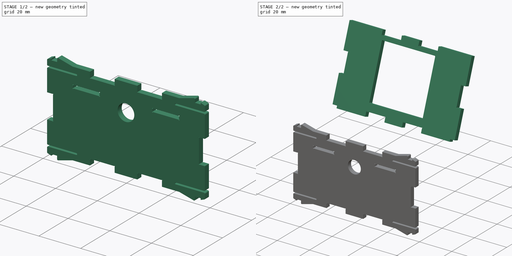
[diagram: build sequence overview — one tinted view per stage of 2, left to right]
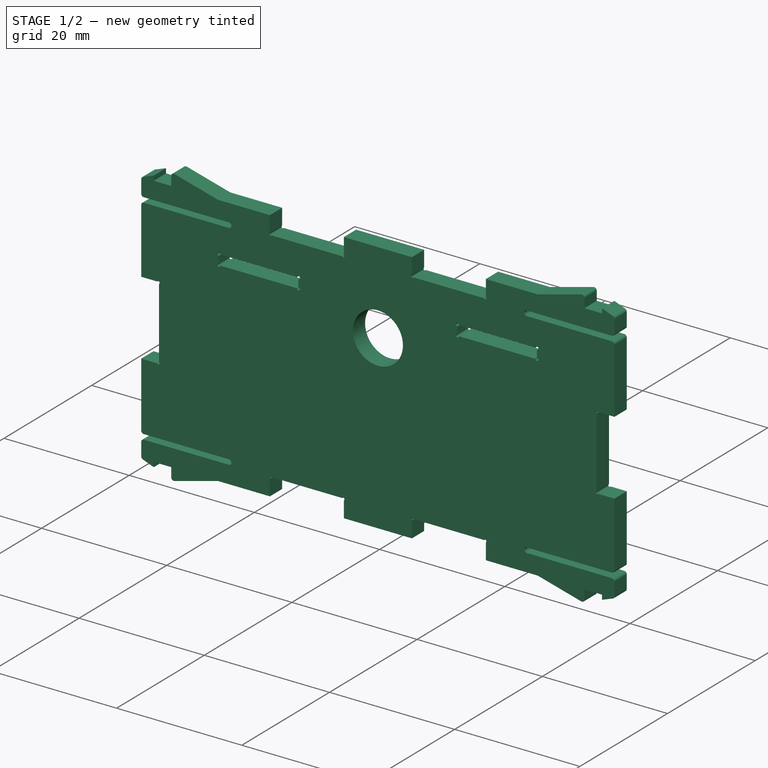
[diagram: stage 1 of 2 — iso view after this stage's code; geometry added in this stage tinted green]
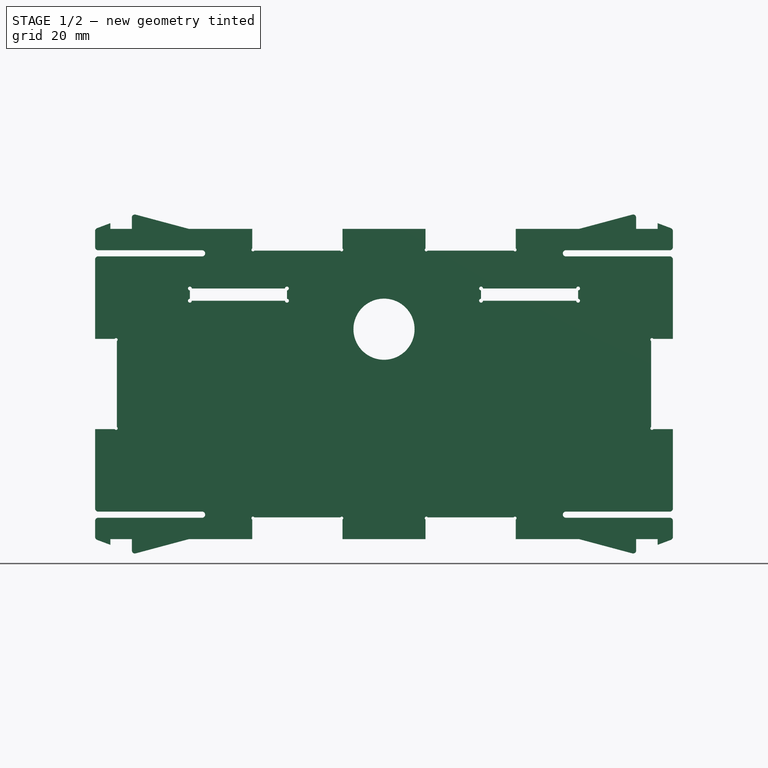
[diagram: stage 1 of 2 — front view after this stage's code; geometry added in this stage tinted green]
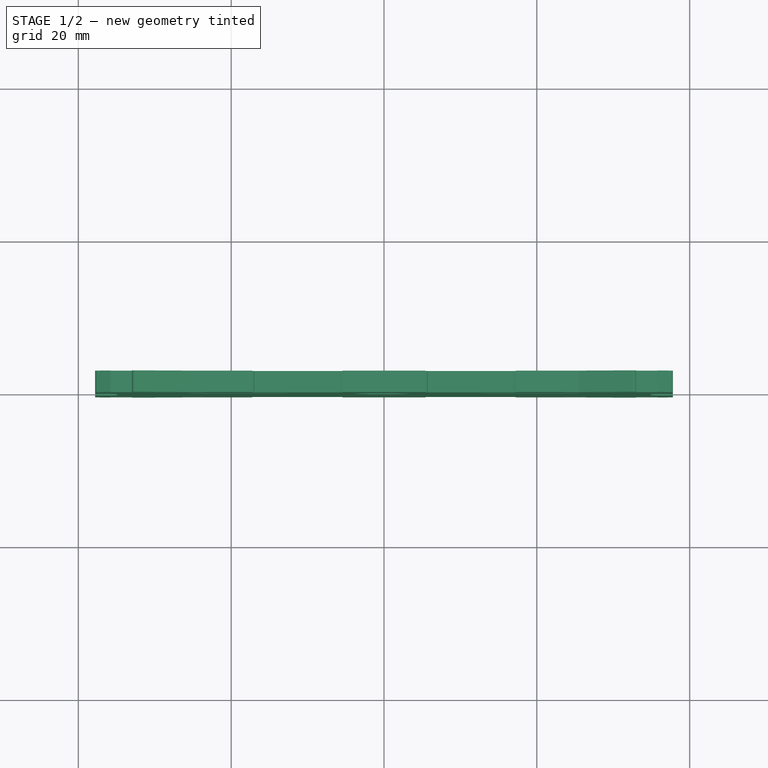
[diagram: stage 1 of 2 — top view after this stage's code; geometry added in this stage tinted green]
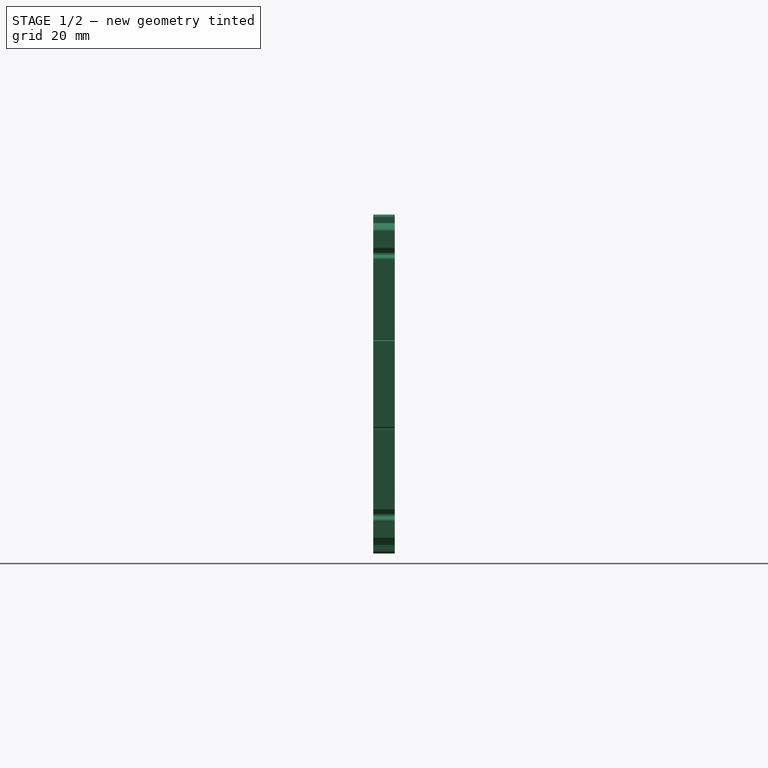
[diagram: stage 1 of 2 — right view after this stage's code; geometry added in this stage tinted green]
FCSTD DOCUMENT  (FreeCAD 1.0R39109 (Git))
Label: TheThing_v3_multijoin
License: CERN Open Hardware Licence strongly-reciprocal
LicenseURL: https://cern-ohl.web.cern.ch/
objects: Part::Feature×10, Sketcher::SketchObject×2, PartDesign::FeatureBase×1, PartDesign::Pocket×1, PartDesign::Body×1, Part::Extrusion×1, Part::Cut×1
note: 22 computed .brp shape members not serialized (recipe doc carries the construction recipe); baked Part::Feature solids carry a one-line shape summary decoded from their .brp

FEATURE [PartDesign::Body] Body
  AllowCompound = false
  BaseFeature = -> Pad017_tab
  Group = -> [BaseFeature,Sketch,Pocket]
  Origin = -> Origin
  Tip = -> Pocket
FEATURE [Sketcher::SketchObject] Sketch001
  ArcFitTolerance = 1e-06
  AttachmentSupport = -> [Pocket015_tab]
  FullyConstrained = true
  MakeInternals = false
  MapMode = 5
  Placement = pos=(0,-60.3887,0) rot=(1,0,0;1.5708rad)
  sketch-geometry (1):
    g0: Circle CenterX=0 CenterY=-10 CenterZ=0 NormalX=0 NormalY=0 NormalZ=1 AngleXU=0 Radius=4
  constraints (3):
    c: Diameter(g0) = 8
    c: PointOnObject(g0,g-2)
    c: DistanceY(g0,g-1) = 10
FEATURE [Part::Extrusion] Extrude
  Base = -> Sketch001
  Dir = (0,1,0)
  DirMode = 0
  FaceMakerClass = Part::FaceMakerBullseye
  FaceMakerMode = 3
  LengthFwd = 4
  LengthRev = 0
  Solid = true
  Symmetric = false
FEATURE [Part::Cut] Cut
  Base = -> Pocket015_tab
  Refine = true
  Tool = -> Extrude
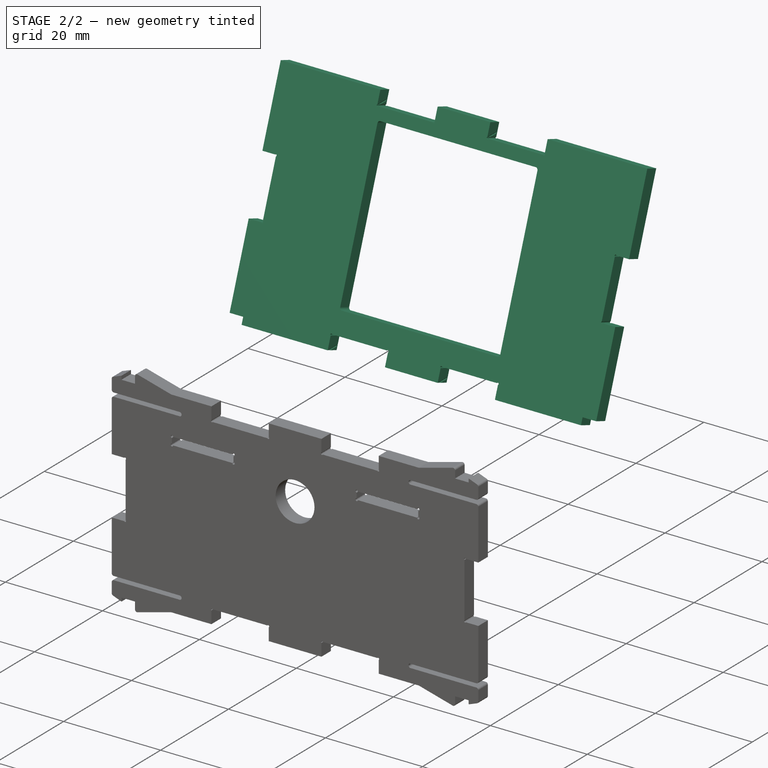
[diagram: stage 2 of 2 — iso view after this stage's code; geometry added in this stage tinted green]
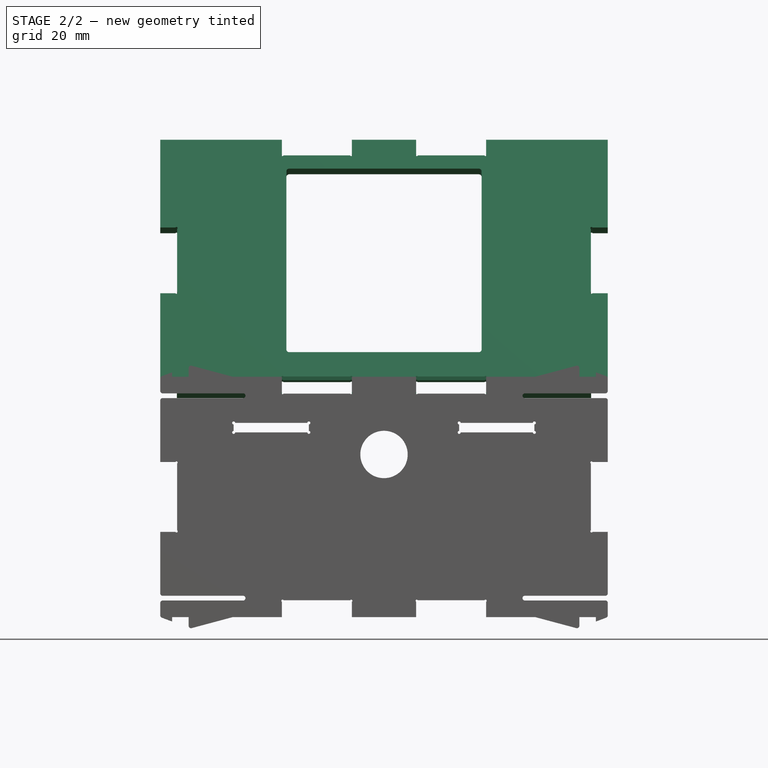
[diagram: stage 2 of 2 — front view after this stage's code; geometry added in this stage tinted green]
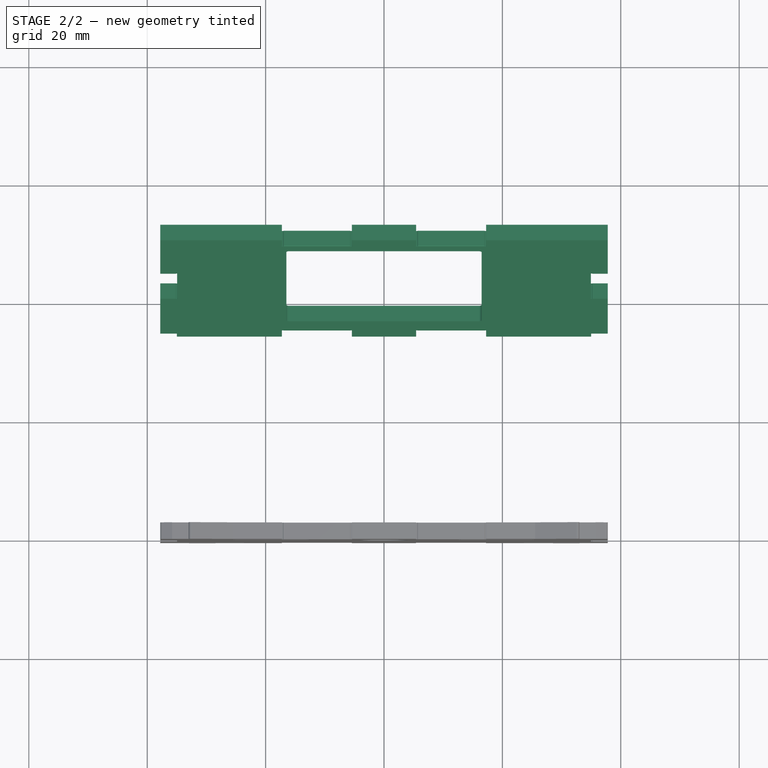
[diagram: stage 2 of 2 — top view after this stage's code; geometry added in this stage tinted green]
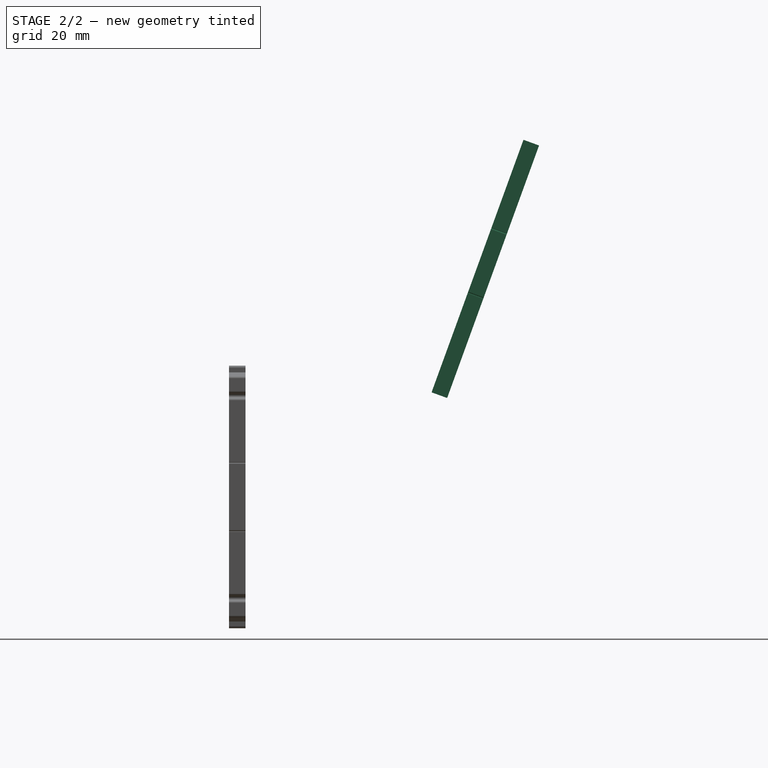
[diagram: stage 2 of 2 — right view after this stage's code; geometry added in this stage tinted green]
FEATURE [Part::Feature] Pad014_tab
  shape: bbox 75.6 x 80.6 x 2.8 mm, 58 faces (baked)
FEATURE [Part::Feature] Pocket011_tab
  shape: bbox 2.8 x 80.6 x 100.6 mm, 122 faces (baked)
FEATURE [Part::Feature] Pocket013_tab
  shape: bbox 2.8 x 80.6 x 100.6 mm, 112 faces (baked)
FEATURE [Part::Feature] Pad013_tab
  shape: bbox 75.6 x 42.8 x 2.8 mm, 38 faces (baked)
FEATURE [Part::Feature] Pad015_tab
  shape: bbox 75.6 x 36.97 x 2.8 mm, 57 faces (baked)
FEATURE [Part::Feature] Pad016_tab
  shape: bbox 75.6 x 16.6 x 2.8 mm, 38 faces (baked)
FEATURE [Part::Feature] Pocket007_tab
  shape: bbox 75.6 x 2.8 x 104.4 mm, 116 faces (baked)
FEATURE [Part::Feature] Pocket015_tab
  shape: bbox 75.6 x 2.8 x 44.36 mm, 118 faces (baked)
FEATURE [Part::Feature] Pocket_tab
  shape: bbox 75.6 x 2.8 x 26.36 mm, 96 faces (baked)
FEATURE [Part::Feature] Pad017_tab
  shape: bbox 75.6 x 18.16 x 43.62 mm, 94 faces (baked)
FEATURE [PartDesign::FeatureBase] BaseFeature
  BaseFeature = -> Pad017_tab
  Suppressed = false
FEATURE [Sketcher::SketchObject] Sketch
  ArcFitTolerance = 1e-06
  AttachmentSupport = -> [BaseFeature]
  ExternalGeometry = -> [BaseFeature]
  FullyConstrained = true
  MakeInternals = false
  MapMode = 5
  Placement = pos=(0,-23.2574,8.465) rot=(1,0,0;1.22173rad)
  sketch-geometry (32):
    g0: LineSegment StartX=-37.8 StartY=-8.47986 StartZ=0 EndX=-35 EndY=-8.47986 EndZ=0
    g1: LineSegment StartX=-35 StartY=-8.47986 StartZ=0 EndX=-35 EndY=-7.07986 EndZ=0
    g2: LineSegment StartX=-35 StartY=-7.07986 StartZ=0 EndX=-37.8 EndY=-7.07986 EndZ=0
    g3: LineSegment StartX=-37.8 StartY=-7.07986 StartZ=0 EndX=-37.8 EndY=-8.47986 EndZ=0
    g4: LineSegment StartX=37.8 StartY=-8.47986 StartZ=0 EndX=37.8 EndY=-7.07986 EndZ=0
    g5: LineSegment StartX=37.8 StartY=-7.07986 StartZ=0 EndX=35 EndY=-7.07986 EndZ=0
    g6: LineSegment StartX=35 StartY=-7.07986 StartZ=0 EndX=35 EndY=-8.47986 EndZ=0
    g7: LineSegment StartX=35 StartY=-8.47986 StartZ=0 EndX=37.8 EndY=-8.47986 EndZ=0
    g8: LineSegment StartX=-5.43335 StartY=-8.47986 StartZ=0 EndX=-17.2467 EndY=-8.47986 EndZ=0
    g9: LineSegment StartX=-17.2467 StartY=-8.47986 StartZ=0 EndX=-17.2467 EndY=-5.91062 EndZ=0
    g10: ArcOfCircle CenterX=-17.1547 CenterY=-5.73299 CenterZ=0 NormalX=0 NormalY=0 NormalZ=1 AngleXU=0 Radius=0.2 StartAngle=0.539657 EndAngle=4.23489
    g11: LineSegment StartX=-16.9832 StartY=-5.63022 StartZ=0 EndX=-5.69684 EndY=-5.63022 EndZ=0
    g12: ArcOfCircle CenterX=-5.52526 CenterY=-5.73299 CenterZ=0 NormalX=0 NormalY=0 NormalZ=1 AngleXU=0 Radius=0.2 StartAngle=5.18988 EndAngle=8.88512
    g13: LineSegment StartX=-5.43335 StartY=-5.91062 StartZ=0 EndX=-5.43335 EndY=-8.47986 EndZ=0
    g14: LineSegment StartX=5.43335 StartY=-8.47986 StartZ=0 EndX=17.2467 EndY=-8.47986 EndZ=0
    g15: LineSegment StartX=17.2467 StartY=-8.47986 StartZ=0 EndX=17.2467 EndY=-5.91062 EndZ=0
    g16: ArcOfCircle CenterX=17.1547 CenterY=-5.73299 CenterZ=0 NormalX=0 NormalY=0 NormalZ=1 AngleXU=0 Radius=0.2 StartAngle=5.18988 EndAngle=8.88512
    g17: LineSegment StartX=16.9832 StartY=-5.63022 StartZ=0 EndX=5.69684 EndY=-5.63022 EndZ=0
    g18: ArcOfCircle CenterX=5.52526 CenterY=-5.73299 CenterZ=0 NormalX=0 NormalY=0 NormalZ=1 AngleXU=0 Radius=0.2 StartAngle=0.539657 EndAngle=4.23489
    g19: LineSegment StartX=5.43335 StartY=-5.91062 StartZ=0 EndX=5.43335 EndY=-8.47986 EndZ=0
    g20: LineSegment StartX=-17.2466 StartY=36.9204 StartZ=0 EndX=-5.43335 EndY=36.9204 EndZ=0
    g21: LineSegment StartX=-5.43335 StartY=36.9204 StartZ=0 EndX=-5.43335 EndY=34.3602 EndZ=0
    g22: ArcOfCircle CenterX=-5.53706 CenterY=34.1892 CenterZ=0 NormalX=0 NormalY=0 NormalZ=1 AngleXU=0 Radius=0.2 StartAngle=3.49272 EndAngle=7.30882
    g23: LineSegment StartX=-5.72486 StartY=34.1204 StartZ=0 EndX=-16.9551 EndY=34.1204 EndZ=0
    g24: ArcOfCircle CenterX=-17.1429 CenterY=34.1892 CenterZ=0 NormalX=0 NormalY=0 NormalZ=1 AngleXU=0 Radius=0.2 StartAngle=2.11596 EndAngle=5.93205
    g25: LineSegment StartX=-17.2467 StartY=34.3602 StartZ=0 EndX=-17.2466 EndY=36.9204 EndZ=0
    g26: LineSegment StartX=5.43335 StartY=36.9204 StartZ=0 EndX=17.2466 EndY=36.9204 EndZ=0
    g27: LineSegment StartX=17.2466 StartY=36.9204 StartZ=0 EndX=17.2466 EndY=34.3602 EndZ=0
    g28: ArcOfCircle CenterX=17.1429 CenterY=34.1892 CenterZ=0 NormalX=0 NormalY=0 NormalZ=1 AngleXU=0 Radius=0.2 StartAngle=3.49272 EndAngle=7.30882
    g29: LineSegment StartX=16.9551 StartY=34.1204 StartZ=0 EndX=5.72486 EndY=34.1204 EndZ=0
    g30: ArcOfCircle CenterX=5.53706 CenterY=34.1892 CenterZ=0 NormalX=0 NormalY=0 NormalZ=1 AngleXU=0 Radius=0.2 StartAngle=2.11596 EndAngle=5.93205
    g31: LineSegment StartX=5.43335 StartY=34.3602 StartZ=0 EndX=5.43335 EndY=36.9204 EndZ=0
  constraints (80):
    c: Coincident(g0,g1)
    c: Coincident(g1,g2)
    c: Coincident(g2,g3)
    c: Coincident(g3,g0)
    c: Horizontal(g0)
    c: Horizontal(g2)
    c: Vertical(g1)
    c: Vertical(g3)
    c: Coincident(g0,g-3)
    c: Coincident(g4,g5)
    c: Coincident(g5,g6)
    c: Coincident(g6,g7)
    c: Coincident(g7,g4)
    c: Vertical(g4)
    c: Vertical(g6)
    c: Horizontal(g5)
    c: Horizontal(g7)
    c: Coincident(g4,g-4)
    c: Equal(g5,g2)
    c: Equal(g1,g6)
    c: Distance(g2,g2) = 2.8
    c: Distance(g1,g1) = 1.4
    c: Coincident(g8,g9)
    c: Coincident(g9,g-5)
    c: Coincident(g10,g-7)
    c: Coincident(g10,g11)
    c: Coincident(g11,g-7)
    c: Coincident(g12,g-6)
    c: Coincident(g12,g13)
    c: Coincident(g8,g13)
    c: PointOnObject(g13,g-17)
    c: Vertical(g13)
    c: PointOnObject(g8,g-18)
    c: Vertical(g9)
    c: Coincident(g10,g9)
    c: Coincident(g11,g12)
    c: Coincident(g14,g15)
    c: Coincident(g16,g17)
    c: Coincident(g18,g19)
    c: Coincident(g14,g19)
    c: Coincident(g16,g15)
    c: Coincident(g17,g18)
    c: Equal(g10,g12)
    c: Equal(g12,g18)
    c: Equal(g18,g16)
    c: Radius(g10) = 0.2
    c: Symmetric(g14,g8,g-2)
    c: Symmetric(g14,g8,g-2)
    c: Symmetric(g18,g12,g-2)
    c: Symmetric(g17,g11,g-2)
    c: Symmetric(g16,g10,g-2)
    c: Symmetric(g15,g9,g-2)
    c: Coincident(g-11,g20)
    c: Coincident(g20,g-12)
    c: Coincident(g20,g21)
    c: Coincident(g21,g-12)
    c: Coincident(g22,g-16)
    c: Coincident(g22,g23)
    c: Coincident(g24,g-11)
    c: Coincident(g24,g25)
    c: Coincident(g25,g20)
    c: Coincident(g-14,g26)
    c: Coincident(g26,g-13)
    c: Coincident(g26,g27)
    c: Coincident(g27,g-13)
    c: Coincident(g28,g-15)
    c: Coincident(g28,g29)
    c: Coincident(g30,g-14)
    c: Coincident(g30,g31)
    c: Coincident(g31,g26)
    c: Coincident(g27,g28)
    c: Coincident(g21,g22)
    c: Coincident(g23,g24)
    c: Coincident(g23,g-16)
    c: Equal(g24,g22)
    c: Equal(g22,g30)
    c: Equal(g30,g28)
    c: Equal(g28,g10)
    c: Coincident(g29,g30)
    c: Coincident(g29,g-15)
FEATURE [PartDesign::Pocket] Pocket
  BaseFeature = -> BaseFeature
  Direction = (0,0.939693,-0.34202)
  Length = 5
  Length2 = 5
  Profile = -> Sketch
  ReferenceAxis = -> Sketch [N_Axis]
  Refine = true
  Suppressed = false
  Type = 1
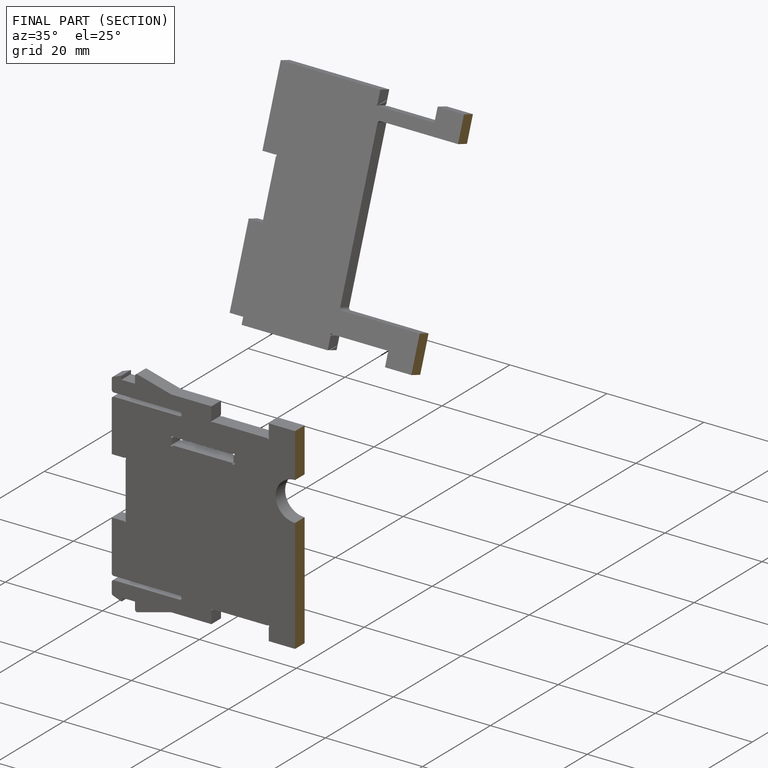
[diagram: finished part — half-section view (interior)]
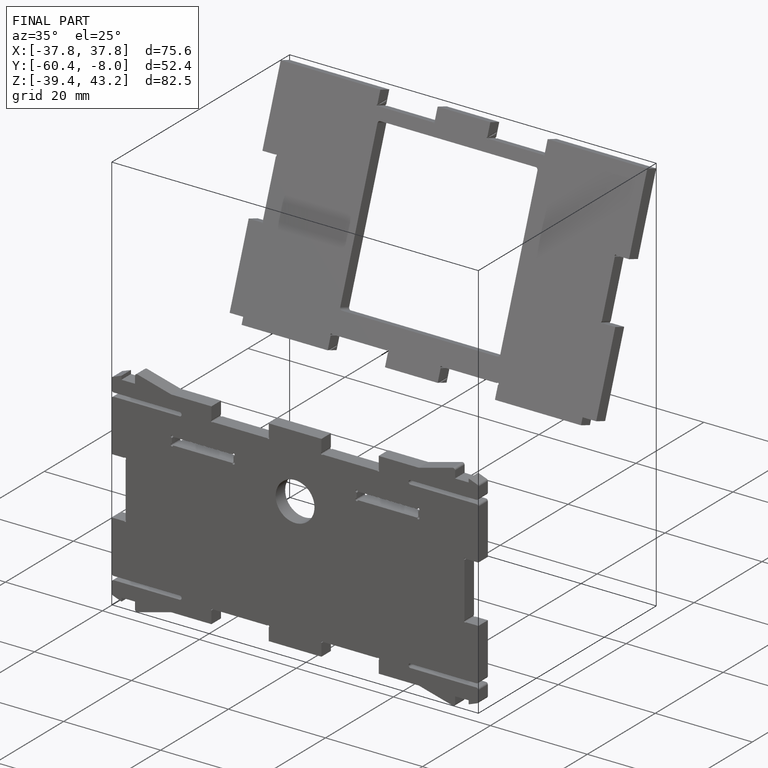
[diagram: finished part — iso view with bounding-box wireframe]
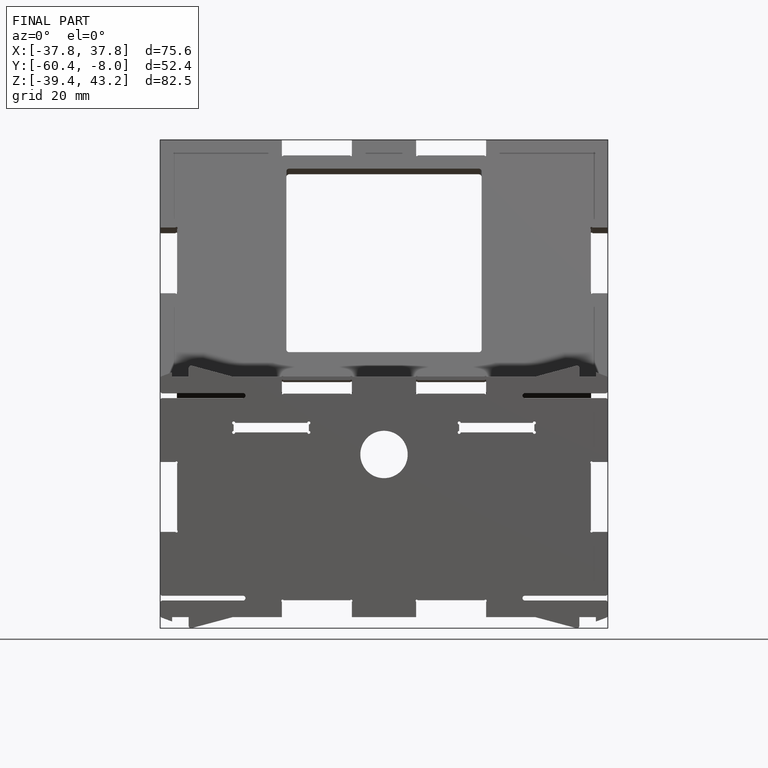
[diagram: finished part — front view with bounding-box wireframe]
